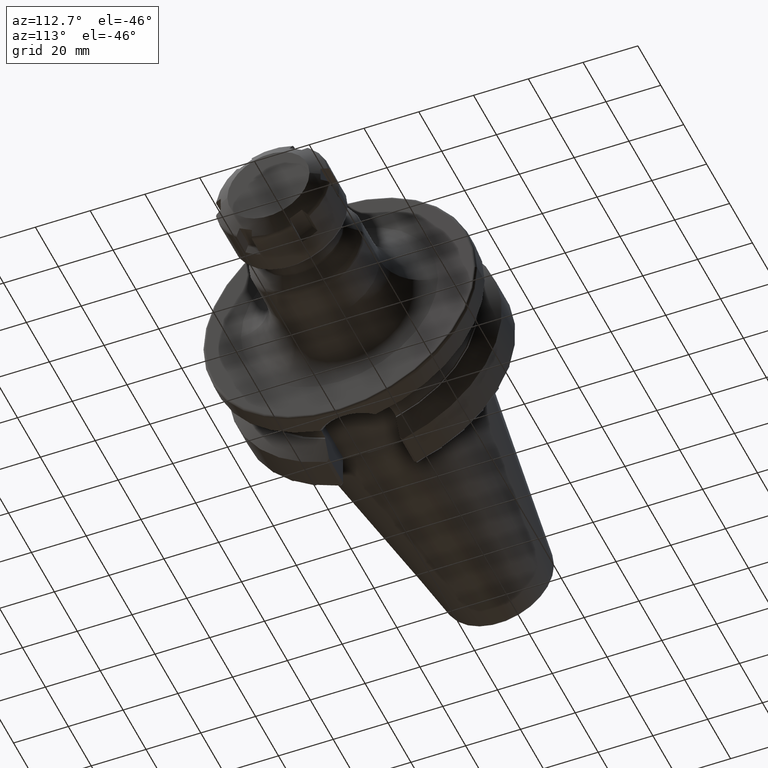
[diagram: clean part render]
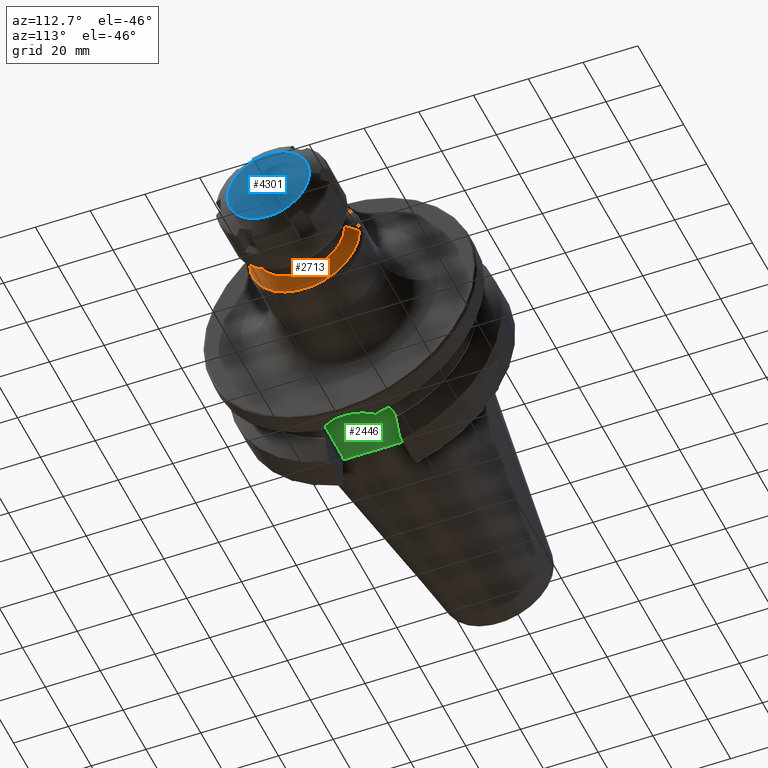
[diagram: same view with three faces highlighted in distinct colors, each labeled with its STEP entity id]
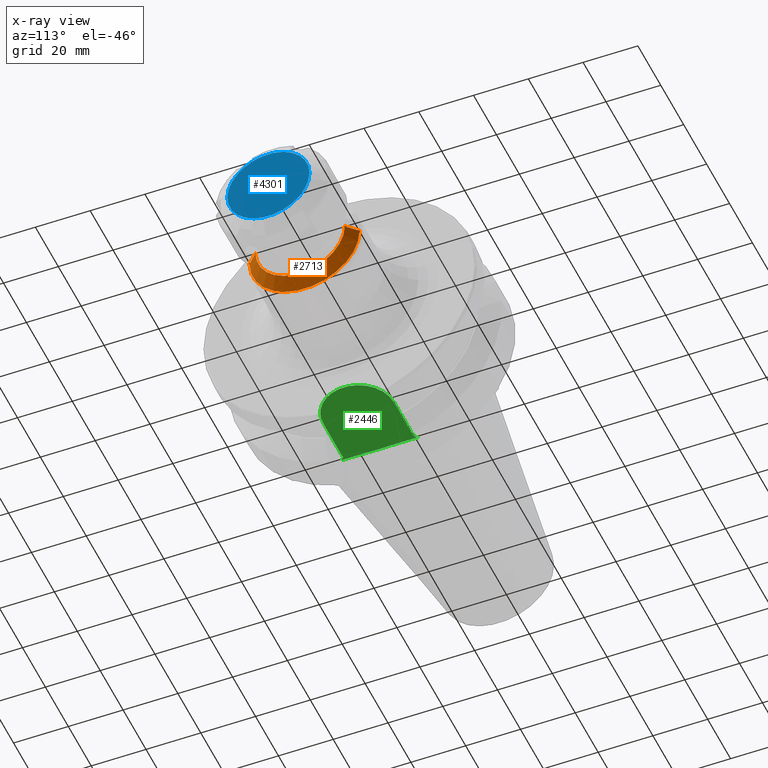
[diagram: x-ray of the same camera — body ghosted, the three highlighted faces saturated]
A machine part, auxiliary view with three faces highlighted in distinct colors.
The next image is the same camera in x-ray (body ghosted, the three faces saturated) — at least one of them is partly hidden behind the body in this view.
Their STEP definitions:

[orange] entity #2713 — the highlighted conical surface has half-angle 45 deg.
#892=CARTESIAN_POINT('',(6.847867965644E1,0.E0,0.E0));
#893=DIRECTION('',(-1.E0,0.E0,0.E0));
#894=DIRECTION('',(0.E0,1.E0,0.E0));
#895=AXIS2_PLACEMENT_3D('',#892,#893,#894);
#897=DIRECTION('',(-7.071067811865E-1,-7.071067811865E-1,-2.818879129505E-12));
#898=VECTOR('',#897,5.414213562372E0);
#899=CARTESIAN_POINT('',(7.230710678119E1,-1.629289321881E1,
9.075680123862E-13));
#900=LINE('',#899,#898);
#901=CARTESIAN_POINT('',(7.230710678119E1,0.E0,0.E0));
#902=DIRECTION('',(1.E0,0.E0,0.E0));
#903=DIRECTION('',(0.E0,-1.E0,0.E0));
#904=AXIS2_PLACEMENT_3D('',#901,#902,#903);
#906=DIRECTION('',(-7.071067811865E-1,7.071067811865E-1,2.818553372752E-12));
#907=VECTOR('',#906,5.414213562372E0);
#908=CARTESIAN_POINT('',(7.230710678119E1,1.629289321881E1,
-9.081015328439E-13));
#909=LINE('',#908,#907);
#1471=CARTESIAN_POINT('',(7.230710678119E1,-1.629289321881E1,0.E0));
#1472=CARTESIAN_POINT('',(7.230710678119E1,1.629289321881E1,0.E0));
#1473=VERTEX_POINT('',#1471);
#1474=VERTEX_POINT('',#1472);
#1483=CARTESIAN_POINT('',(6.847867965644E1,2.012132034356E1,0.E0));
#1484=CARTESIAN_POINT('',(6.847867965644E1,-2.012132034356E1,0.E0));
#1485=VERTEX_POINT('',#1483);
#1486=VERTEX_POINT('',#1484);
#2699=CARTESIAN_POINT('',(7.039289321881E1,0.E0,0.E0));
#2700=DIRECTION('',(-1.E0,0.E0,0.E0));
#2701=DIRECTION('',(0.E0,1.E0,0.E0));
#2702=AXIS2_PLACEMENT_3D('',#2699,#2700,#2701);
#2703=CONICAL_SURFACE('',#2702,1.820710678119E1,4.5E1);
#2704=ORIENTED_EDGE('',*,*,#2681,.T.);
#2706=ORIENTED_EDGE('',*,*,#2705,.F.);
#2708=ORIENTED_EDGE('',*,*,#2707,.T.);
#2710=ORIENTED_EDGE('',*,*,#2709,.T.);
#2711=EDGE_LOOP('',(#2704,#2706,#2708,#2710));
#2712=FACE_OUTER_BOUND('',#2711,.F.);
#2713=ADVANCED_FACE('',(#2712),#2703,.T.);
#896=CIRCLE('',#895,2.012132034356E1);
#905=CIRCLE('',#904,1.629289321881E1);
#2681=EDGE_CURVE('',#1485,#1486,#896,.T.);
#2705=EDGE_CURVE('',#1473,#1486,#900,.T.);
#2707=EDGE_CURVE('',#1473,#1474,#905,.T.);
#2709=EDGE_CURVE('',#1474,#1485,#909,.T.);

[blue] entity #4301 — the highlighted planar face has unit normal (1, 0, 0).
#3456=CARTESIAN_POINT('',(2.E1,-2.266909448450E-14,0.E0));
#3457=DIRECTION('',(-1.E0,0.E0,0.E0));
#3458=DIRECTION('',(0.E0,1.E0,0.E0));
#3459=AXIS2_PLACEMENT_3D('',#3456,#3457,#3458);
#3778=CARTESIAN_POINT('',(2.E1,-2.266909448450E-14,0.E0));
#3779=DIRECTION('',(1.E0,0.E0,0.E0));
#3780=DIRECTION('',(0.E0,1.E0,0.E0));
#3781=AXIS2_PLACEMENT_3D('',#3778,#3779,#3780);
#4188=CARTESIAN_POINT('',(2.E1,1.5E1,0.E0));
#4189=CARTESIAN_POINT('',(2.E1,-1.5E1,0.E0));
#4190=VERTEX_POINT('',#4188);
#4191=VERTEX_POINT('',#4189);
#4290=CARTESIAN_POINT('',(2.E1,-2.266909448450E-14,0.E0));
#4291=DIRECTION('',(1.E0,0.E0,0.E0));
#4292=DIRECTION('',(0.E0,-1.E0,0.E0));
#4293=AXIS2_PLACEMENT_3D('',#4290,#4291,#4292);
#4294=PLANE('',#4293);
#4296=ORIENTED_EDGE('',*,*,#4295,.T.);
#4298=ORIENTED_EDGE('',*,*,#4297,.F.);
#4299=EDGE_LOOP('',(#4296,#4298));
#4300=FACE_OUTER_BOUND('',#4299,.F.);
#4301=ADVANCED_FACE('',(#4300),#4294,.T.);
#3460=CIRCLE('',#3459,1.5E1);
#3782=CIRCLE('',#3781,1.5E1);
#4295=EDGE_CURVE('',#4190,#4191,#3460,.T.);
#4297=EDGE_CURVE('',#4190,#4191,#3782,.T.);

[green] entity #2446 — the highlighted planar face has unit normal (0, 0, 1).
#116=CARTESIAN_POINT('',(3.E0,5.151759408202E0,-3.52E1));
#117=CARTESIAN_POINT('',(3.E0,4.661054534870E0,-3.52E1));
#118=CARTESIAN_POINT('',(2.985185415827E0,3.679726334622E0,-3.52E1));
#119=CARTESIAN_POINT('',(2.950323079572E0,2.207949548567E0,-3.52E1));
#120=CARTESIAN_POINT('',(2.926055980585E0,7.360772187789E-1,-3.52E1));
#121=CARTESIAN_POINT('',(2.926055295134E0,-7.360096390892E-1,-3.52E1));
#122=CARTESIAN_POINT('',(2.950321957577E0,-2.207902449886E0,-3.52E1));
#123=CARTESIAN_POINT('',(2.985185074233E0,-3.679708044781E0,-3.52E1));
#124=CARTESIAN_POINT('',(3.E0,-4.661048861242E0,-3.52E1));
#125=CARTESIAN_POINT('',(3.E0,-5.151759408202E0,-3.52E1));
#147=DIRECTION('',(7.071067811865E-1,-7.071067811865E-1,0.E0));
#148=VECTOR('',#147,1.414213562373E0);
#149=CARTESIAN_POINT('',(3.E0,1.39025E1,-3.52E1));
#150=LINE('',#149,#148);
#733=DIRECTION('',(-7.071067811865E-1,-7.071067811865E-1,0.E0));
#734=VECTOR('',#733,1.414213562373E0);
#735=CARTESIAN_POINT('',(4.E0,-1.29025E1,-3.52E1));
#736=LINE('',#735,#734);
#737=DIRECTION('',(-1.E0,0.E0,0.E0));
#738=VECTOR('',#737,1.73475E1);
#739=CARTESIAN_POINT('',(2.13475E1,1.29025E1,-3.52E1));
#740=LINE('',#739,#738);
#741=DIRECTION('',(0.E0,-1.E0,0.E0));
#742=VECTOR('',#741,8.750740591798E0);
#743=CARTESIAN_POINT('',(3.E0,1.39025E1,-3.52E1));
#744=LINE('',#743,#742);
#745=DIRECTION('',(0.E0,-1.E0,0.E0));
#746=VECTOR('',#745,8.750740591798E0);
#747=CARTESIAN_POINT('',(3.E0,-5.151759408202E0,-3.52E1));
#748=LINE('',#747,#746);
#749=DIRECTION('',(1.E0,0.E0,0.E0));
#750=VECTOR('',#749,1.73475E1);
#751=CARTESIAN_POINT('',(4.E0,-1.29025E1,-3.52E1));
#752=LINE('',#751,#750);
#753=CARTESIAN_POINT('',(2.13475E1,0.E0,-3.52E1));
#754=DIRECTION('',(0.E0,0.E0,1.E0));
#755=DIRECTION('',(0.E0,-1.E0,0.E0));
#756=AXIS2_PLACEMENT_3D('',#753,#754,#755);
#1370=CARTESIAN_POINT('',(2.13475E1,-1.29025E1,-3.52E1));
#1371=CARTESIAN_POINT('',(2.13475E1,1.29025E1,-3.52E1));
#1372=VERTEX_POINT('',#1370);
#1373=VERTEX_POINT('',#1371);
#1374=CARTESIAN_POINT('',(3.E0,5.151759408202E0,-3.52E1));
#1375=VERTEX_POINT('',#1374);
#1376=CARTESIAN_POINT('',(3.E0,-5.151759408202E0,-3.52E1));
#1377=VERTEX_POINT('',#1376);
#1423=CARTESIAN_POINT('',(4.E0,1.29025E1,-3.52E1));
#1425=VERTEX_POINT('',#1423);
#1427=CARTESIAN_POINT('',(3.E0,1.39025E1,-3.52E1));
#1429=VERTEX_POINT('',#1427);
#1433=CARTESIAN_POINT('',(3.E0,-1.39025E1,-3.52E1));
#1434=VERTEX_POINT('',#1433);
#1435=CARTESIAN_POINT('',(4.E0,-1.29025E1,-3.52E1));
#1437=VERTEX_POINT('',#1435);
#2431=CARTESIAN_POINT('',(0.E0,0.E0,-3.52E1));
#2432=DIRECTION('',(0.E0,0.E0,1.E0));
#2433=DIRECTION('',(1.E0,0.E0,0.E0));
#2434=AXIS2_PLACEMENT_3D('',#2431,#2432,#2433);
#2435=PLANE('',#2434);
#2436=ORIENTED_EDGE('',*,*,#1707,.T.);
#2437=ORIENTED_EDGE('',*,*,#1688,.F.);
#2438=ORIENTED_EDGE('',*,*,#1652,.T.);
#2439=ORIENTED_EDGE('',*,*,#1631,.T.);
#2440=ORIENTED_EDGE('',*,*,#1664,.T.);
#2441=ORIENTED_EDGE('',*,*,#2426,.F.);
#2442=ORIENTED_EDGE('',*,*,#1862,.T.);
#2443=ORIENTED_EDGE('',*,*,#1956,.T.);
#2444=EDGE_LOOP('',(#2436,#2437,#2438,#2439,#2440,#2441,#2442,#2443));
#2445=FACE_OUTER_BOUND('',#2444,.F.);
#2446=ADVANCED_FACE('',(#2445),#2435,.F.);
#126=B_SPLINE_CURVE_WITH_KNOTS('',3,(#116,#117,#118,#119,#120,#121,#122,#123,
#124,#125),.UNSPECIFIED.,.F.,.F.,(4,1,1,1,1,1,1,4),(0.E0,1.428571428571E-1,
2.857142857143E-1,4.285714285714E-1,5.714285714286E-1,7.142857142857E-1,
8.571428571429E-1,1.E0),.UNSPECIFIED.);
#757=CIRCLE('',#756,1.29025E1);
#1631=EDGE_CURVE('',#1375,#1377,#126,.T.);
#1652=EDGE_CURVE('',#1429,#1375,#744,.T.);
#1664=EDGE_CURVE('',#1377,#1434,#748,.T.);
#1688=EDGE_CURVE('',#1429,#1425,#150,.T.);
#1707=EDGE_CURVE('',#1373,#1425,#740,.T.);
#1862=EDGE_CURVE('',#1437,#1372,#752,.T.);
#1956=EDGE_CURVE('',#1372,#1373,#757,.T.);
#2426=EDGE_CURVE('',#1437,#1434,#736,.T.);